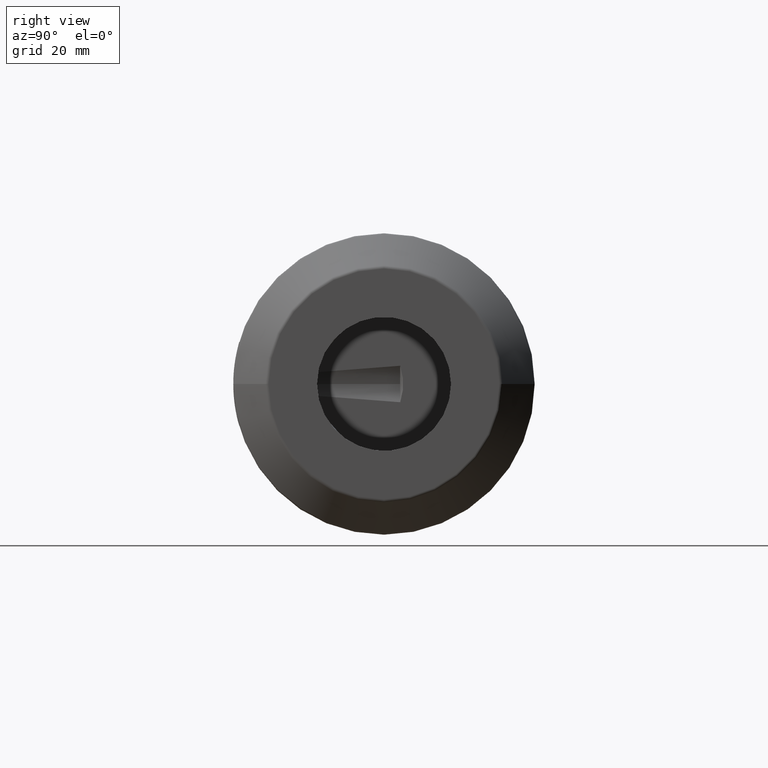
[diagram: clean part render]
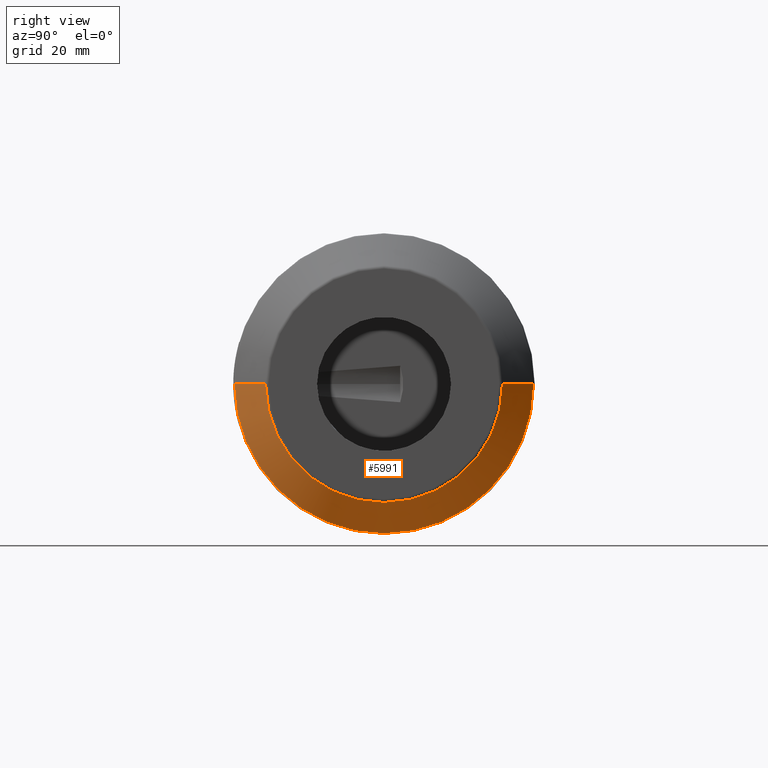
[diagram: same view with one face highlighted and labeled with its STEP entity id]
A machine part, right view. The second image highlights one B-rep face of the part: STEP entity #5991.
In plain terms, the highlighted conical surface has half-angle 45 deg.
Its self-contained STEP definition (entity closure, byte-faithful):
#2303=CARTESIAN_POINT('',(1.022928932188E2,0.E0,0.E0));
#2304=DIRECTION('',(-1.E0,0.E0,0.E0));
#2305=DIRECTION('',(0.E0,1.E0,0.E0));
#2306=AXIS2_PLACEMENT_3D('',#2303,#2304,#2305);
#2308=DIRECTION('',(-7.071067811865E-1,-7.071067811865E-1,-4.101986648722E-14));
#2309=VECTOR('',#2308,1.048528137424E1);
#2310=CARTESIAN_POINT('',(1.097071067812E2,-2.829289321881E1,
2.711715305955E-14));
#2311=LINE('',#2310,#2309);
#2312=CARTESIAN_POINT('',(1.097071067812E2,0.E0,0.E0));
#2313=DIRECTION('',(-1.E0,0.E0,0.E0));
#2314=DIRECTION('',(0.E0,1.E0,0.E0));
#2315=AXIS2_PLACEMENT_3D('',#2312,#2313,#2314);
#2317=DIRECTION('',(-7.071067811865E-1,7.071067811865E-1,4.028118470167E-14));
#2318=VECTOR('',#2317,1.048528137424E1);
#2319=CARTESIAN_POINT('',(1.097071067812E2,2.829289321881E1,
-2.797990364058E-14));
#2320=LINE('',#2319,#2318);
#3464=CARTESIAN_POINT('',(1.022928932188E2,3.570710678119E1,0.E0));
#3465=CARTESIAN_POINT('',(1.022928932188E2,-3.570710678119E1,0.E0));
#3466=VERTEX_POINT('',#3464);
#3467=VERTEX_POINT('',#3465);
#3468=CARTESIAN_POINT('',(1.097071067812E2,2.829289321881E1,0.E0));
#3469=CARTESIAN_POINT('',(1.097071067812E2,-2.829289321881E1,0.E0));
#3470=VERTEX_POINT('',#3468);
#3471=VERTEX_POINT('',#3469);
#5977=CARTESIAN_POINT('',(1.06E2,0.E0,0.E0));
#5978=DIRECTION('',(-1.E0,0.E0,0.E0));
#5979=DIRECTION('',(0.E0,1.E0,0.E0));
#5980=AXIS2_PLACEMENT_3D('',#5977,#5978,#5979);
#5981=CONICAL_SURFACE('',#5980,3.2E1,4.5E1);
#5982=ORIENTED_EDGE('',*,*,#5971,.T.);
#5984=ORIENTED_EDGE('',*,*,#5983,.F.);
#5986=ORIENTED_EDGE('',*,*,#5985,.F.);
#5988=ORIENTED_EDGE('',*,*,#5987,.T.);
#5989=EDGE_LOOP('',(#5982,#5984,#5986,#5988));
#5990=FACE_OUTER_BOUND('',#5989,.F.);
#5991=ADVANCED_FACE('',(#5990),#5981,.T.);
#2307=CIRCLE('',#2306,3.570710678119E1);
#2316=CIRCLE('',#2315,2.829289321881E1);
#5971=EDGE_CURVE('',#3466,#3467,#2307,.T.);
#5983=EDGE_CURVE('',#3471,#3467,#2311,.T.);
#5985=EDGE_CURVE('',#3470,#3471,#2316,.T.);
#5987=EDGE_CURVE('',#3470,#3466,#2320,.T.);